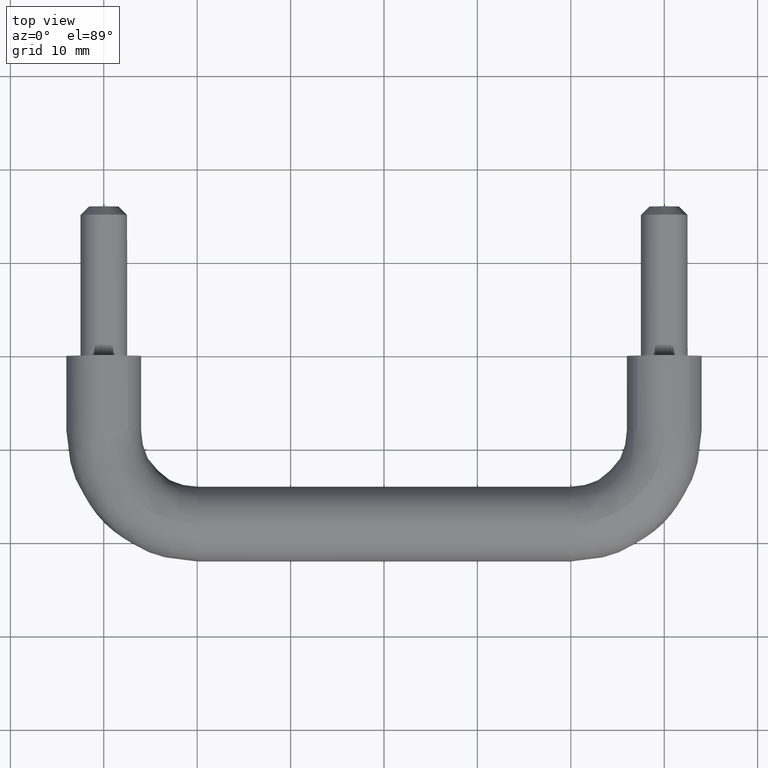
[diagram: clean part render]
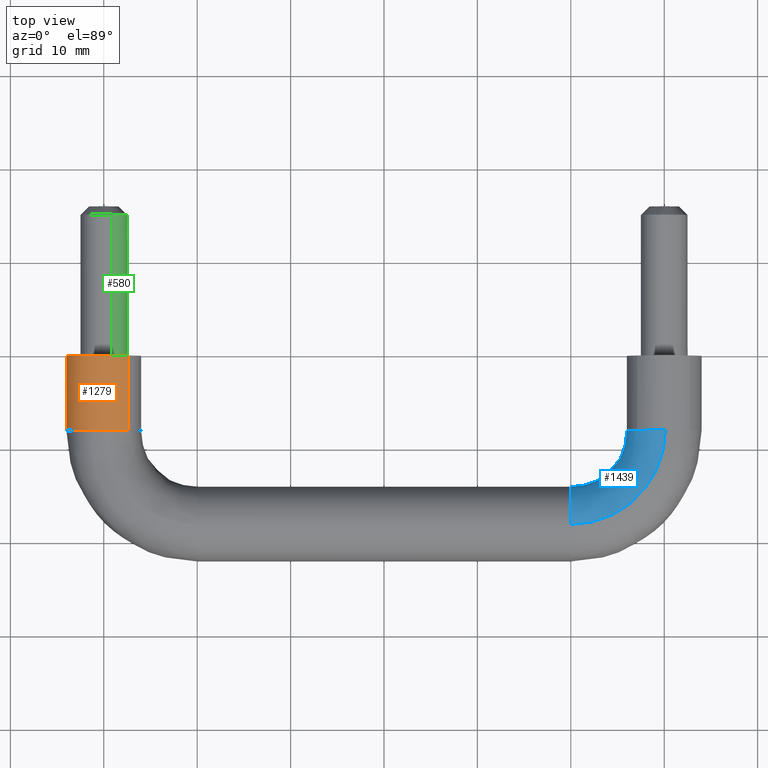
[diagram: same view with three faces highlighted in distinct colors, each labeled with its STEP entity id]
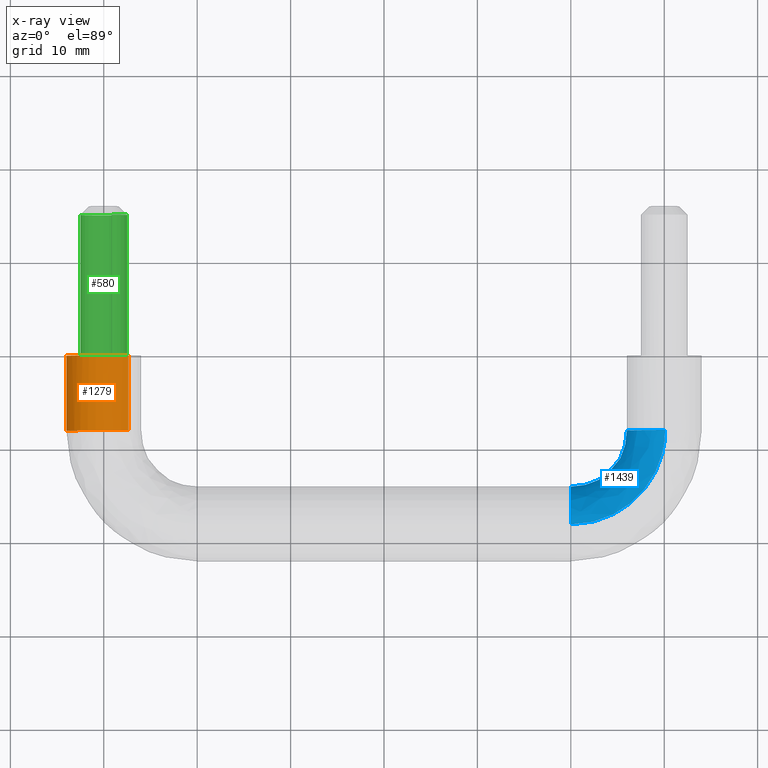
[diagram: x-ray of the same camera — body ghosted, the three highlighted faces saturated]
A machine part, top view with three faces highlighted in distinct colors.
The next image is the same camera in x-ray (body ghosted, the three faces saturated) — at least one of them is partly hidden behind the body in this view.
Their STEP definitions:

[orange] entity #1279 — the highlighted face is a freeform B-spline surface patch.
#1166=CARTESIAN_POINT('',(2.635878288639743,0.200000000012068,3.008678388840790));
#1167=CARTESIAN_POINT('',(-0.205377497417183,0.200000000012068,5.497879117877503));
#1168=CARTESIAN_POINT('',(-2.853001796616727,0.200000000012068,2.803637057199401));
#1169=CARTESIAN_POINT('',(-5.656638853816128,0.200000000012067,-0.049364739417326));
#1170=CARTESIAN_POINT('',(-2.803637057199401,0.200000000012068,-2.853001796616727));
#1171=CARTESIAN_POINT('',(2.635878288639744,-8.205000000495065,3.008678388840790));
#1172=CARTESIAN_POINT('',(-0.205377497417182,-8.205000000495064,5.497879117877503));
#1173=CARTESIAN_POINT('',(-2.853001796616726,-8.205000000495065,2.803637057199401));
#1174=CARTESIAN_POINT('',(-5.656638853816128,-8.205000000495065,-0.049364739417326));
#1175=CARTESIAN_POINT('',(-2.803637057199400,-8.205000000495065,-2.853001796616727));
#1183=(BOUNDED_SURFACE()B_SPLINE_SURFACE(2,1,((#1166,#1171),(#1167,#1172),(#1168,#1173),(#1169,#1174),(#1170,#1175)),.UNSPECIFIED.,.F.,.F.,.U.)B_SPLINE_SURFACE_WITH_KNOTS((3,2,3),(2,2),(0.0,6.362320318050738,12.989737316020260),(0.0,8.405000000507135),.UNSPECIFIED.)GEOMETRIC_REPRESENTATION_ITEM()RATIONAL_B_SPLINE_SURFACE(((0.977505800795127,0.977505800795127),(0.718822509939086,0.718822509939086),(1.0,1.0),(0.707106781186548,0.707106781186548),(1.0,1.0)))REPRESENTATION_ITEM('')SURFACE());
#1184=CARTESIAN_POINT('',(2.635878256833538,-8.0,3.008678416705945));
#1185=VERTEX_POINT('',#1184);
#1186=CARTESIAN_POINT('',(-0.050264161491411,-8.000000000482695,3.999684176790658));
#1187=VERTEX_POINT('',#1186);
#1188=CARTESIAN_POINT('',(2.635878256833538,-8.0,3.008678416705945));
#1189=CARTESIAN_POINT('',(1.504351067536320,-8.0,4.000000000000000));
#1190=CARTESIAN_POINT('',(9.796851E-016,-8.0,4.0));
#1191=CARTESIAN_POINT('',(-0.025133073925801,-8.0,4.000000000000001));
#1192=CARTESIAN_POINT('',(-0.050264161491411,-8.000000000482695,3.999684176790658));
#1200=(BOUNDED_CURVE()B_SPLINE_CURVE(2,(#1188,#1189,#1190,#1191,#1192),.UNSPECIFIED.,.F.,.U.)B_SPLINE_CURVE_WITH_KNOTS((3,2,3),(0.634954723269971,0.750000000000000,0.752215704250460),.UNSPECIFIED.)CURVE()GEOMETRIC_REPRESENTATION_ITEM()RATIONAL_B_SPLINE_CURVE((0.854482180908901,0.865216074357030,1.0,0.997404141000576,0.994854295247701))REPRESENTATION_ITEM(''));
#1201=EDGE_CURVE('',#1185,#1187,#1200,.T.);
#1202=ORIENTED_EDGE('',*,*,#1201,.F.);
#1203=CARTESIAN_POINT('',(2.635878257225859,1.987600E-016,3.008678416362234));
#1204=VERTEX_POINT('',#1203);
#1205=CARTESIAN_POINT('',(2.635878257225859,1.987600E-016,3.008678416362234));
#1206=CARTESIAN_POINT('',(2.635878256833538,-8.0,3.008678416705945));
#1207=QUASI_UNIFORM_CURVE('',1,(#1205,#1206),.UNSPECIFIED.,.F.,.U.);
#1208=EDGE_CURVE('',#1204,#1185,#1207,.T.);
#1209=ORIENTED_EDGE('',*,*,#1208,.F.);
#1210=CARTESIAN_POINT('',(-4.0,0.0,0.0));
#1211=VERTEX_POINT('',#1210);
#1212=CARTESIAN_POINT('',(2.635878257225860,1.987600E-016,3.008678416362234));
#1213=CARTESIAN_POINT('',(1.504351068131682,0.0,4.000000000000001));
#1214=CARTESIAN_POINT('',(0.0,0.0,4.0));
#1215=CARTESIAN_POINT('',(-4.000000000000000,0.0,4.000000000000000));
#1216=CARTESIAN_POINT('',(-4.0,0.0,0.0));
#1224=(BOUNDED_CURVE()B_SPLINE_CURVE(2,(#1212,#1213,#1214,#1215,#1216),.UNSPECIFIED.,.F.,.U.)B_SPLINE_CURVE_WITH_KNOTS((3,2,3),(0.634954723230578,0.750000000000000,1.0),.UNSPECIFIED.)CURVE()GEOMETRIC_REPRESENTATION_ITEM()RATIONAL_B_SPLINE_CURVE((0.854482180901550,0.865216074310877,1.0,0.707106781186548,1.0))REPRESENTATION_ITEM(''));
#1225=EDGE_CURVE('',#1204,#1211,#1224,.T.);
#1226=ORIENTED_EDGE('',*,*,#1225,.T.);
#1227=CARTESIAN_POINT('',(-2.803636857988532,-1.249001E-016,-2.853001992380676));
#1228=VERTEX_POINT('',#1227);
#1229=CARTESIAN_POINT('',(-4.0,0.0,0.0));
#1230=CARTESIAN_POINT('',(-4.0,0.0,-1.677339535446148));
#1231=CARTESIAN_POINT('',(-2.803636857988533,-1.249001E-016,-2.853001992380677));
#1239=(BOUNDED_CURVE()B_SPLINE_CURVE(2,(#1229,#1230,#1231),.UNSPECIFIED.,.F.,.U.)B_SPLINE_CURVE_WITH_KNOTS((3,3),(0.0,0.126316778663051),.UNSPECIFIED.)CURVE()GEOMETRIC_REPRESENTATION_ITEM()RATIONAL_B_SPLINE_CURVE((1.0,0.852010688428930,0.853569641771621))REPRESENTATION_ITEM(''));
#1240=EDGE_CURVE('',#1211,#1228,#1239,.T.);
#1241=ORIENTED_EDGE('',*,*,#1240,.T.);
#1242=CARTESIAN_POINT('',(-2.803636855499414,-7.999996549036103,-2.853001994825821));
#1243=VERTEX_POINT('',#1242);
#1244=CARTESIAN_POINT('',(-2.803636857988532,-1.249001E-016,-2.853001992380676));
#1245=CARTESIAN_POINT('',(-2.803636855499414,-7.999996549036103,-2.853001994825821));
#1246=QUASI_UNIFORM_CURVE('',1,(#1244,#1245),.UNSPECIFIED.,.F.,.U.);
#1247=EDGE_CURVE('',#1228,#1243,#1246,.T.);
#1248=ORIENTED_EDGE('',*,*,#1247,.T.);
#1249=CARTESIAN_POINT('',(-3.999999999999999,-8.0,0.0));
#1250=VERTEX_POINT('',#1249);
#1251=CARTESIAN_POINT('',(-3.999999999999999,-8.0,0.0));
#1252=CARTESIAN_POINT('',(-4.000000000000053,-7.999998600445676,-1.677339539548950));
#1253=CARTESIAN_POINT('',(-2.803636855499414,-7.999996549036104,-2.853001994825821));
#1261=(BOUNDED_CURVE()B_SPLINE_CURVE(2,(#1251,#1252,#1253),.UNSPECIFIED.,.F.,.U.)B_SPLINE_CURVE_WITH_KNOTS((3,3),(0.0,0.126316778926350),.UNSPECIFIED.)CURVE()GEOMETRIC_REPRESENTATION_ITEM()RATIONAL_B_SPLINE_CURVE((1.0,0.852010688120457,0.853569641778120))REPRESENTATION_ITEM(''));
#1262=EDGE_CURVE('',#1250,#1243,#1261,.T.);
#1263=ORIENTED_EDGE('',*,*,#1262,.F.);
#1264=CARTESIAN_POINT('',(-0.050264161491411,-8.000000000482695,3.999684176790658));
#1265=CARTESIAN_POINT('',(-4.0,-8.0,3.950047715761540));
#1266=CARTESIAN_POINT('',(-3.999999999999999,-8.0,0.0));
#1274=(BOUNDED_CURVE()B_SPLINE_CURVE(2,(#1264,#1265,#1266),.UNSPECIFIED.,.F.,.U.)B_SPLINE_CURVE_WITH_KNOTS((3,3),(0.752215704250460,1.0),.UNSPECIFIED.)CURVE()GEOMETRIC_REPRESENTATION_ITEM()RATIONAL_B_SPLINE_CURVE((0.994854295247703,0.709702640185971,1.0))REPRESENTATION_ITEM(''));
#1275=EDGE_CURVE('',#1187,#1250,#1274,.T.);
#1276=ORIENTED_EDGE('',*,*,#1275,.F.);
#1277=EDGE_LOOP('',(#1202,#1209,#1226,#1241,#1248,#1263,#1276));
#1278=FACE_OUTER_BOUND('',#1277,.T.);
#1279=ADVANCED_FACE('',(#1278),#1183,.T.);

[blue] entity #1439 — the highlighted face is a freeform B-spline surface patch.
#769=CARTESIAN_POINT('',(59.899484552384273,-7.999991810552365,-3.998736881162301));
#770=VERTEX_POINT('',#769);
#786=CARTESIAN_POINT('',(55.999999999999993,-8.0,0.0));
#787=VERTEX_POINT('',#786);
#788=CARTESIAN_POINT('',(59.899484552384266,-7.999991810552365,-3.998736881162301));
#789=CARTESIAN_POINT('',(56.000000000000028,-7.999995905276183,-3.900716319445861));
#790=CARTESIAN_POINT('',(55.999999999999993,-8.0,0.0));
#798=(BOUNDED_CURVE()B_SPLINE_CURVE(2,(#788,#789,#790),.UNSPECIFIED.,.F.,.U.)B_SPLINE_CURVE_WITH_KNOTS((3,3),(0.254419892319458,0.500000000000000),.UNSPECIFIED.)CURVE()GEOMETRIC_REPRESENTATION_ITEM()RATIONAL_B_SPLINE_CURVE((0.989826645702907,0.712285007139567,1.0))REPRESENTATION_ITEM(''));
#799=EDGE_CURVE('',#770,#787,#798,.T.);
#801=CARTESIAN_POINT('',(57.098501917460467,-8.000000000000021,2.753417672097480));
#802=VERTEX_POINT('',#801);
#803=CARTESIAN_POINT('',(55.999999999999993,-8.0,0.0));
#804=CARTESIAN_POINT('',(55.999999999999993,-8.0,1.595837176054672));
#805=CARTESIAN_POINT('',(57.098501917460474,-8.000000000000021,2.753417672097480));
#813=(BOUNDED_CURVE()B_SPLINE_CURVE(2,(#803,#804,#805),.UNSPECIFIED.,.F.,.U.)B_SPLINE_CURVE_WITH_KNOTS((3,3),(0.500000000000000,0.621049461052829),.UNSPECIFIED.)CURVE()GEOMETRIC_REPRESENTATION_ITEM()RATIONAL_B_SPLINE_CURVE((1.0,0.858181734866413,0.853699666227769))REPRESENTATION_ITEM(''));
#814=EDGE_CURVE('',#787,#802,#813,.T.);
#886=CARTESIAN_POINT('',(60.100520387876692,-8.000000006253728,3.998736756979773));
#887=VERTEX_POINT('',#886);
#888=CARTESIAN_POINT('',(57.098501917460482,-8.000000000000021,2.753417672097480));
#889=CARTESIAN_POINT('',(58.281463346193810,-8.0,4.0));
#890=CARTESIAN_POINT('',(60.0,-8.0,4.0));
#891=CARTESIAN_POINT('',(60.050268134599754,-8.0,4.000000000000001));
#892=CARTESIAN_POINT('',(60.100520387876692,-8.000000006253728,3.998736756979773));
#900=(BOUNDED_CURVE()B_SPLINE_CURVE(2,(#888,#889,#890,#891,#892),.UNSPECIFIED.,.F.,.U.)B_SPLINE_CURVE_WITH_KNOTS((3,2,3),(0.621049461052829,0.750000000000000,0.754420108764337),.UNSPECIFIED.)CURVE()GEOMETRIC_REPRESENTATION_ITEM()RATIONAL_B_SPLINE_CURVE((0.853699666227769,0.848925046320134,1.0,0.994821520466031,0.989826156474254))REPRESENTATION_ITEM(''));
#901=EDGE_CURVE('',#802,#887,#900,.T.);
#942=CARTESIAN_POINT('',(50.000000000051983,-15.085144465333290,-2.739273117427020));
#943=VERTEX_POINT('',#942);
#944=CARTESIAN_POINT('',(50.0,-14.0,0.0));
#945=VERTEX_POINT('',#944);
#946=CARTESIAN_POINT('',(50.000000000051983,-15.085144465333292,-2.739273117427019));
#947=CARTESIAN_POINT('',(50.0,-13.999999999999998,-1.584572868463763));
#948=CARTESIAN_POINT('',(50.0,-14.0,0.0));
#956=(BOUNDED_CURVE()B_SPLINE_CURVE(2,(#946,#947,#948),.UNSPECIFIED.,.F.,.U.)B_SPLINE_CURVE_WITH_KNOTS((3,3),(0.379684533793850,0.500000000000000),.UNSPECIFIED.)CURVE()GEOMETRIC_REPRESENTATION_ITEM()RATIONAL_B_SPLINE_CURVE((0.853759070585715,0.859041663319358,1.0))REPRESENTATION_ITEM(''));
#957=EDGE_CURVE('',#943,#945,#956,.T.);
#1050=CARTESIAN_POINT('',(50.000000000706883,-18.100520384777500,3.998736757057681));
#1051=VERTEX_POINT('',#1050);
#1065=CARTESIAN_POINT('',(50.0,-14.0,0.0));
#1066=CARTESIAN_POINT('',(50.0,-13.999999999999998,4.000000000000000));
#1067=CARTESIAN_POINT('',(50.0,-18.0,4.0));
#1068=CARTESIAN_POINT('',(49.999999999999993,-18.050268131499084,4.000000000000001));
#1069=CARTESIAN_POINT('',(50.000000000706883,-18.100520384777493,3.998736757057680));
#1077=(BOUNDED_CURVE()B_SPLINE_CURVE(2,(#1065,#1066,#1067,#1068,#1069),.UNSPECIFIED.,.F.,.U.)B_SPLINE_CURVE_WITH_KNOTS((3,2,3),(0.500000000000000,0.750000000000000,0.754420108493105),.UNSPECIFIED.)CURVE()GEOMETRIC_REPRESENTATION_ITEM()RATIONAL_B_SPLINE_CURVE((1.0,0.707106781186548,1.0,0.994821520783799,0.989826157087317))REPRESENTATION_ITEM(''));
#1078=EDGE_CURVE('',#945,#1051,#1077,.T.);
#1101=CARTESIAN_POINT('',(50.000000000186787,-17.899479618020539,-3.998736757128018));
#1102=VERTEX_POINT('',#1101);
#1103=CARTESIAN_POINT('',(50.000000000186787,-17.899479618020539,-3.998736757128019));
#1104=CARTESIAN_POINT('',(50.000000000106773,-16.229285357191880,-3.956751356332737));
#1105=CARTESIAN_POINT('',(50.000000000051983,-15.085144465333292,-2.739273117427019));
#1113=(BOUNDED_CURVE()B_SPLINE_CURVE(2,(#1103,#1104,#1105),.UNSPECIFIED.,.F.,.U.)B_SPLINE_CURVE_WITH_KNOTS((3,3),(0.254420108248230,0.379684533793850),.UNSPECIFIED.)CURVE()GEOMETRIC_REPRESENTATION_ITEM()RATIONAL_B_SPLINE_CURVE((0.989826157640806,0.848259187943550,0.853759070585715))REPRESENTATION_ITEM(''));
#1114=EDGE_CURVE('',#1102,#943,#1113,.T.);
#1382=CARTESIAN_POINT('',(49.295748593177862,-18.075938762150550,3.998736757133199));
#1383=CARTESIAN_POINT('',(60.881660808525631,-18.885728814430987,3.998736757133199));
#1384=CARTESIAN_POINT('',(60.076201286834710,-7.299514732625198,3.998736757133198));
#1385=CARTESIAN_POINT('',(49.574557593138316,-14.086933724000156,4.099257138906547));
#1386=CARTESIAN_POINT('',(56.573675139566710,-14.576132645802021,4.099257138906548));
#1387=CARTESIAN_POINT('',(56.087092316702176,-7.576832740075237,4.099257138906548));
#1388=CARTESIAN_POINT('',(49.581566303343592,-13.986657978512433,0.100520381773351));
#1389=CARTESIAN_POINT('',(56.465380848039423,-14.467797869478778,0.100520381773351));
#1390=CARTESIAN_POINT('',(55.986813958568710,-7.583803969659624,0.100520381773351));
#1391=CARTESIAN_POINT('',(49.588575013548834,-13.886382233024701,-3.898216375359846));
#1392=CARTESIAN_POINT('',(56.357086556512115,-14.359463093155533,-3.898216375359846));
#1393=CARTESIAN_POINT('',(55.886535600435231,-7.590775199244011,-3.898216375359846));
#1394=CARTESIAN_POINT('',(49.309766013588394,-17.875387271175097,-3.998736757133199));
#1395=CARTESIAN_POINT('',(60.665072225471079,-18.669059261784501,-3.998736757133199));
#1396=CARTESIAN_POINT('',(59.875644570567808,-7.313457191793973,-3.998736757133198));
#1404=(BOUNDED_SURFACE()B_SPLINE_SURFACE(2,2,((#1382,#1385,#1388,#1391,#1394),(#1383,#1386,#1389,#1392,#1395),(#1384,#1387,#1390,#1393,#1396)),.UNSPECIFIED.,.F.,.F.,.U.)B_SPLINE_SURFACE_WITH_KNOTS((3,3),(3,2,3),(0.0,18.406899792511769),(0.0,6.627416997969521,13.254833995939039),.UNSPECIFIED.)GEOMETRIC_REPRESENTATION_ITEM()RATIONAL_B_SPLINE_SURFACE(((0.916719248271871,0.648218396897274,0.916719248271871,0.648218396897274,0.916719248271871),(0.603246719825717,0.426559846317306,0.603246719825717,0.426559846317306,0.603246719825717),(0.921825697358838,0.651829201674453,0.921825697358838,0.651829201674453,0.921825697358838)))REPRESENTATION_ITEM('')SURFACE());
#1405=ORIENTED_EDGE('',*,*,#901,.F.);
#1406=ORIENTED_EDGE('',*,*,#814,.F.);
#1407=ORIENTED_EDGE('',*,*,#799,.F.);
#1408=CARTESIAN_POINT('',(50.000000000186787,-17.899479618020539,-3.998736757128019));
#1409=CARTESIAN_POINT('',(59.899490274660700,-17.899479617747975,-3.998736819145160));
#1410=CARTESIAN_POINT('',(59.899484552384266,-7.999991810552365,-3.998736881162300));
#1418=(BOUNDED_CURVE()B_SPLINE_CURVE(2,(#1408,#1409,#1410),.UNSPECIFIED.,.F.,.U.)B_SPLINE_CURVE_WITH_KNOTS((3,3),(-1.733067862694350,-0.253786818865084),.UNSPECIFIED.)CURVE()GEOMETRIC_REPRESENTATION_ITEM()RATIONAL_B_SPLINE_CURVE((0.889551170312059,0.630646694483035,0.894193826133788))REPRESENTATION_ITEM(''));
#1419=EDGE_CURVE('',#1102,#770,#1418,.T.);
#1420=ORIENTED_EDGE('',*,*,#1419,.F.);
#1421=ORIENTED_EDGE('',*,*,#1114,.T.);
#1422=ORIENTED_EDGE('',*,*,#957,.T.);
#1423=ORIENTED_EDGE('',*,*,#1078,.T.);
#1424=CARTESIAN_POINT('',(50.000000000706876,-18.100520384777496,3.998736757057681));
#1425=CARTESIAN_POINT('',(60.100520369265880,-18.100520380359587,3.998736757133198));
#1426=CARTESIAN_POINT('',(60.100520387876678,-8.000000006253728,3.998736756979774));
#1434=(BOUNDED_CURVE()B_SPLINE_CURVE(2,(#1424,#1425,#1426),.UNSPECIFIED.,.F.,.U.)B_SPLINE_CURVE_WITH_KNOTS((3,3),(-1.733067862587692,-0.253787687740336),.UNSPECIFIED.)CURVE()GEOMETRIC_REPRESENTATION_ITEM()RATIONAL_B_SPLINE_CURVE((0.889551170274724,0.630646846572999,0.894193516538193))REPRESENTATION_ITEM(''));
#1435=EDGE_CURVE('',#1051,#887,#1434,.T.);
#1436=ORIENTED_EDGE('',*,*,#1435,.T.);
#1437=EDGE_LOOP('',(#1405,#1406,#1407,#1420,#1421,#1422,#1423,#1436));
#1438=FACE_OUTER_BOUND('',#1437,.T.);
#1439=ADVANCED_FACE('',(#1438),#1404,.T.);

[green] entity #580 — the highlighted face is a freeform B-spline surface patch.
#398=CARTESIAN_POINT('',(0.879044936017752,15.100000000000000,2.340358946927061));
#399=VERTEX_POINT('',#398);
#415=CARTESIAN_POINT('',(-2.495336996069555,15.099999999944311,0.152621349049799));
#416=VERTEX_POINT('',#415);
#430=CARTESIAN_POINT('',(-2.495336996046850,1.110223E-016,0.152621348964940));
#431=VERTEX_POINT('',#430);
#432=CARTESIAN_POINT('',(-2.495336996069555,15.099999999944311,0.152621349049799));
#433=CARTESIAN_POINT('',(-2.495336996046850,1.110223E-016,0.152621348964940));
#434=QUASI_UNIFORM_CURVE('',1,(#432,#433),.UNSPECIFIED.,.F.,.U.);
#435=EDGE_CURVE('',#416,#431,#434,.T.);
#452=CARTESIAN_POINT('',(0.879044936015158,1.531301E-016,2.340358946928036));
#453=VERTEX_POINT('',#452);
#467=CARTESIAN_POINT('',(0.879044936017752,15.100000000000000,2.340358946927061));
#468=CARTESIAN_POINT('',(0.879044936015158,1.531301E-016,2.340358946928036));
#469=QUASI_UNIFORM_CURVE('',1,(#467,#468),.UNSPECIFIED.,.F.,.U.);
#470=EDGE_CURVE('',#399,#453,#469,.T.);
#475=CARTESIAN_POINT('',(-2.495336996054666,15.477499999999999,0.152621348837143));
#476=CARTESIAN_POINT('',(-2.647958344891809,15.477499999999999,-2.342715647217524));
#477=CARTESIAN_POINT('',(-0.152621348837142,15.477499999999999,-2.495336996054667));
#478=CARTESIAN_POINT('',(2.342715647217524,15.477499999999999,-2.647958344891809));
#479=CARTESIAN_POINT('',(2.495336996054667,15.477499999999999,-0.152621348837143));
#480=CARTESIAN_POINT('',(2.608093057173355,15.477500000000010,1.690923954507663));
#481=CARTESIAN_POINT('',(0.879044935978931,15.477500000000006,2.340358946941643));
#482=CARTESIAN_POINT('',(-2.495336996054666,-0.386937500000000,0.152621348837143));
#483=CARTESIAN_POINT('',(-2.647958344891809,-0.386937500000000,-2.342715647217524));
#484=CARTESIAN_POINT('',(-0.152621348837142,-0.386937500000000,-2.495336996054667));
#485=CARTESIAN_POINT('',(2.342715647217524,-0.386937500000000,-2.647958344891809));
#486=CARTESIAN_POINT('',(2.495336996054667,-0.386937500000000,-0.152621348837143));
#487=CARTESIAN_POINT('',(2.608093057173355,-0.386937500000000,1.690923954507663));
#488=CARTESIAN_POINT('',(0.879044935978931,-0.386937500000000,2.340358946941643));
#496=(BOUNDED_SURFACE()B_SPLINE_SURFACE(2,1,((#475,#482),(#476,#483),(#477,#484),(#478,#485),(#479,#486),(#480,#487),(#481,#488)),.UNSPECIFIED.,.F.,.F.,.U.)B_SPLINE_SURFACE_WITH_KNOTS((3,2,2,3),(2,2),(0.0,4.142135623730949,8.284271247461899,11.597979746446660),(0.0,15.864437500000010),.UNSPECIFIED.)GEOMETRIC_REPRESENTATION_ITEM()RATIONAL_B_SPLINE_SURFACE(((1.0,1.0),(0.707106781186548,0.707106781186548),(1.0,1.0),(0.707106781186548,0.707106781186548),(1.0,1.0),(0.765685424949238,0.765685424949238),(0.906274169979695,0.906274169979695)))REPRESENTATION_ITEM('')SURFACE());
#497=CARTESIAN_POINT('',(2.482523815912221,15.099999999949841,-0.295085587041181));
#498=VERTEX_POINT('',#497);
#499=CARTESIAN_POINT('',(2.482523815912221,15.099999999949841,-0.295085587041181));
#500=CARTESIAN_POINT('',(2.500000000000001,15.100000000000000,-0.148060299527298));
#501=CARTESIAN_POINT('',(2.500000000000000,15.100000000000000,0.0));
#502=CARTESIAN_POINT('',(2.500000000000000,15.100000000000003,1.731523989174682));
#503=CARTESIAN_POINT('',(0.879044936017752,15.100000000000007,2.340358946927062));
#511=(BOUNDED_CURVE()B_SPLINE_CURVE(2,(#499,#500,#501,#502,#503),.UNSPECIFIED.,.F.,.U.)B_SPLINE_CURVE_WITH_KNOTS((3,2,3),(0.229562473462086,0.250000000000000,0.440284170893669),.UNSPECIFIED.)CURVE()GEOMETRIC_REPRESENTATION_ITEM()RATIONAL_B_SPLINE_CURVE((0.956026754082909,0.976055948270900,1.0,0.777068226790817,0.893499554629353))REPRESENTATION_ITEM(''));
#512=EDGE_CURVE('',#498,#399,#511,.T.);
#513=ORIENTED_EDGE('',*,*,#512,.T.);
#514=ORIENTED_EDGE('',*,*,#470,.T.);
#515=CARTESIAN_POINT('',(6.123032E-016,0.0,-2.500000000000000));
#516=VERTEX_POINT('',#515);
#517=CARTESIAN_POINT('',(6.123032E-016,0.0,-2.500000000000000));
#518=CARTESIAN_POINT('',(2.500000000000000,0.0,-2.500000000000000));
#519=CARTESIAN_POINT('',(2.500000000000000,0.0,0.0));
#520=CARTESIAN_POINT('',(2.500000000000001,0.0,1.731523989178789));
#521=CARTESIAN_POINT('',(0.879044936015158,1.531301E-016,2.340358946928036));
#529=(BOUNDED_CURVE()B_SPLINE_CURVE(2,(#517,#518,#519,#520,#521),.UNSPECIFIED.,.F.,.U.)B_SPLINE_CURVE_WITH_KNOTS((3,2,3),(0.0,0.250000000000000,0.440284170894020),.UNSPECIFIED.)CURVE()GEOMETRIC_REPRESENTATION_ITEM()RATIONAL_B_SPLINE_CURVE((1.0,0.707106781186548,1.0,0.777068226790406,0.893499554629782))REPRESENTATION_ITEM(''));
#530=EDGE_CURVE('',#516,#453,#529,.T.);
#531=ORIENTED_EDGE('',*,*,#530,.F.);
#532=CARTESIAN_POINT('',(-2.495336996046850,1.110223E-016,0.152621348964939));
#533=CARTESIAN_POINT('',(-2.500000000000000,0.0,0.076381908374628));
#534=CARTESIAN_POINT('',(-2.500000000000000,0.0,0.0));
#535=CARTESIAN_POINT('',(-2.500000000000000,0.0,-2.500000000000000));
#536=CARTESIAN_POINT('',(6.123032E-016,0.0,-2.500000000000000));
#544=(BOUNDED_CURVE()B_SPLINE_CURVE(2,(#532,#533,#534,#535,#536),.UNSPECIFIED.,.F.,.U.)B_SPLINE_CURVE_WITH_KNOTS((3,2,3),(0.739332962224295,0.750000000000000,1.0),.UNSPECIFIED.)CURVE()GEOMETRIC_REPRESENTATION_ITEM()RATIONAL_B_SPLINE_CURVE((0.976072041635323,0.987502787882676,1.0,0.707106781186548,1.0))REPRESENTATION_ITEM(''));
#545=EDGE_CURVE('',#431,#516,#544,.T.);
#546=ORIENTED_EDGE('',*,*,#545,.F.);
#547=ORIENTED_EDGE('',*,*,#435,.F.);
#548=CARTESIAN_POINT('',(6.123032E-016,15.100000000000000,-2.500000000000000));
#549=VERTEX_POINT('',#548);
#550=CARTESIAN_POINT('',(-2.495336996069555,15.099999999944309,0.152621349049799));
#551=CARTESIAN_POINT('',(-2.500000000000000,15.100000000000005,0.076381908669568));
#552=CARTESIAN_POINT('',(-2.500000000000000,15.100000000000000,0.0));
#553=CARTESIAN_POINT('',(-2.500000000000000,15.100000000000001,-2.500000000000000));
#554=CARTESIAN_POINT('',(6.123032E-016,15.100000000000000,-2.500000000000000));
#562=(BOUNDED_CURVE()B_SPLINE_CURVE(2,(#550,#551,#552,#553,#554),.UNSPECIFIED.,.F.,.U.)B_SPLINE_CURVE_WITH_KNOTS((3,2,3),(0.739332962183620,0.750000000000000,1.0),.UNSPECIFIED.)CURVE()GEOMETRIC_REPRESENTATION_ITEM()RATIONAL_B_SPLINE_CURVE((0.976072041548150,0.987502787835022,1.0,0.707106781186548,1.0))REPRESENTATION_ITEM(''));
#563=EDGE_CURVE('',#416,#549,#562,.T.);
#564=ORIENTED_EDGE('',*,*,#563,.T.);
#565=CARTESIAN_POINT('',(6.123032E-016,15.100000000000000,-2.500000000000000));
#566=CARTESIAN_POINT('',(2.220436314169795,15.100000000000003,-2.500000000000000));
#567=CARTESIAN_POINT('',(2.482523815912221,15.099999999949841,-0.295085587041181));
#575=(BOUNDED_CURVE()B_SPLINE_CURVE(2,(#565,#566,#567),.UNSPECIFIED.,.F.,.U.)B_SPLINE_CURVE_WITH_KNOTS((3,3),(0.0,0.229562473462086),.UNSPECIFIED.)CURVE()GEOMETRIC_REPRESENTATION_ITEM()RATIONAL_B_SPLINE_CURVE((1.0,0.731050832915648,0.956026754082909))REPRESENTATION_ITEM(''));
#576=EDGE_CURVE('',#549,#498,#575,.T.);
#577=ORIENTED_EDGE('',*,*,#576,.T.);
#578=EDGE_LOOP('',(#513,#514,#531,#546,#547,#564,#577));
#579=FACE_OUTER_BOUND('',#578,.T.);
#580=ADVANCED_FACE('',(#579),#496,.T.);